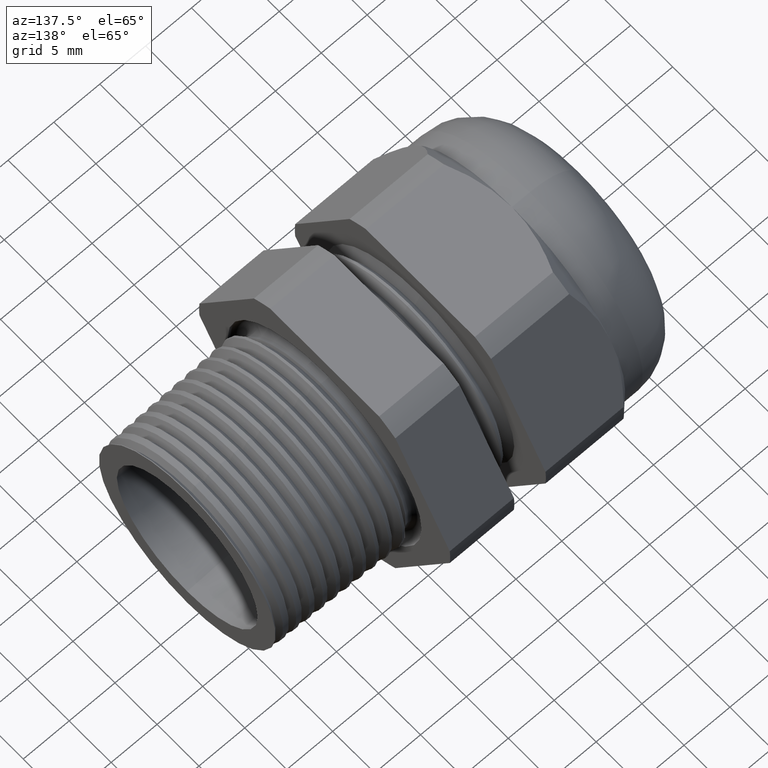
[diagram: clean part render]
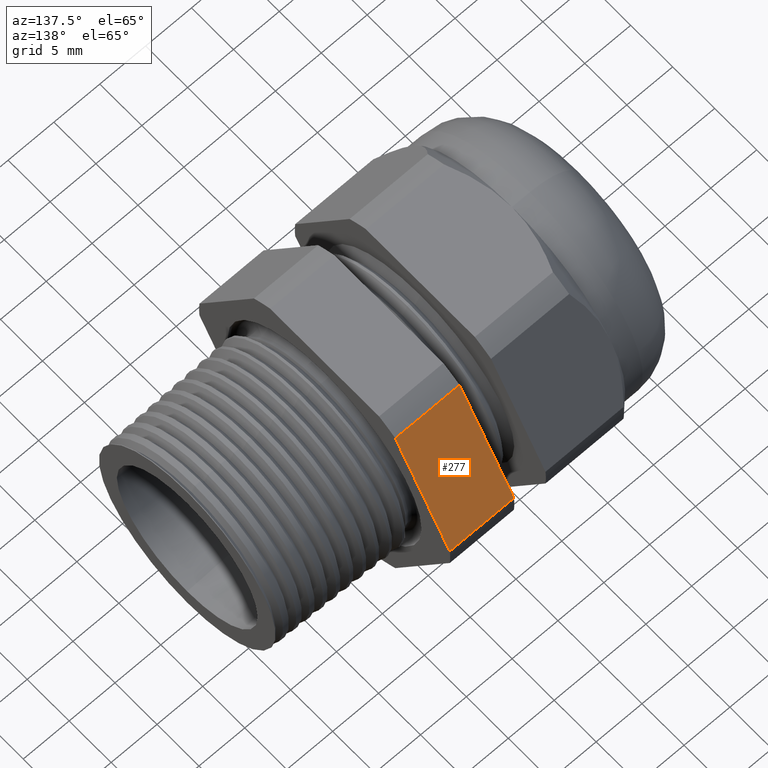
[diagram: same view with one face highlighted and labeled with its STEP entity id]
A machine part, auxiliary view. The second image highlights one B-rep face of the part: STEP entity #277.
In plain terms, the highlighted planar face has unit normal (0, 0.866, 0.5).
Its self-contained STEP definition (entity closure, byte-faithful):
#236 = EDGE_CURVE ( 'NONE', #237, #238, #818, .T. ) ;
#237 = VERTEX_POINT ( 'NONE', #878 ) ;
#238 = VERTEX_POINT ( 'NONE', #877 ) ;
#275 = EDGE_CURVE ( 'NONE', #1490, #238, #888, .T. ) ;
#277 = ADVANCED_FACE ( 'NONE', ( #884 ), #883, .T. ) ;
#278 = EDGE_LOOP ( 'NONE', ( #279, #332, #333, #335 ) ) ;
#279 = ORIENTED_EDGE ( 'NONE', *, *, #275, .T. ) ;
#332 = ORIENTED_EDGE ( 'NONE', *, *, #236, .F. ) ;
#333 = ORIENTED_EDGE ( 'NONE', *, *, #334, .F. ) ;
#334 = EDGE_CURVE ( 'NONE', #1483, #237, #1800, .T. ) ;
#335 = ORIENTED_EDGE ( 'NONE', *, *, #1482, .F. ) ;
#620 = DIRECTION ( 'NONE',  ( 0.0000000000000000000, -0.5000000000000001100, 0.8660254037844386000 ) ) ;
#815 = DIRECTION ( 'NONE',  ( 0.0000000000000000000, 0.5000000000000002200, -0.8660254037844386000 ) ) ;
#816 = VECTOR ( 'NONE', #815, 39.37007874015747400 ) ;
#817 = CARTESIAN_POINT ( 'NONE',  ( -0.5855905511811022600, 0.7239934640057524900, -0.1939934640057524600 ) ) ;
#818 = LINE ( 'NONE', #817, #816 ) ;
#877 = CARTESIAN_POINT ( 'NONE',  ( -0.5855905511811022600, 0.5866618723924791300, 0.04387183015273709400 ) ) ;
#878 = CARTESIAN_POINT ( 'NONE',  ( -0.5855905511811022600, 0.3313250556190259800, 0.4861281698472629800 ) ) ;
#879 = DIRECTION ( 'NONE',  ( 0.0000000000000000000, 0.8660254037844386000, 0.5000000000000001100 ) ) ;
#880 = CARTESIAN_POINT ( 'NONE',  ( 0.2800000000000000300, 0.3313250556190259800, 0.4861281698472629800 ) ) ;
#881 = AXIS2_PLACEMENT_3D ( 'NONE', #880, #879, #620 ) ;
#883 = PLANE ( 'NONE',  #881 ) ;
#884 = FACE_OUTER_BOUND ( 'NONE', #278, .T. ) ;
#885 = DIRECTION ( 'NONE',  ( -1.000000000000000000, 0.0000000000000000000, 0.0000000000000000000 ) ) ;
#886 = VECTOR ( 'NONE', #885, 39.37007874015748100 ) ;
#887 = CARTESIAN_POINT ( 'NONE',  ( 0.2800000000000000300, 0.5866618723924791300, 0.04387183015273709400 ) ) ;
#888 = LINE ( 'NONE', #887, #886 ) ;
#1482 = EDGE_CURVE ( 'NONE', #1490, #1483, #3194, .T. ) ;
#1483 = VERTEX_POINT ( 'NONE', #3190 ) ;
#1490 = VERTEX_POINT ( 'NONE', #3178 ) ;
#1797 = DIRECTION ( 'NONE',  ( -1.000000000000000000, 0.0000000000000000000, 0.0000000000000000000 ) ) ;
#1798 = VECTOR ( 'NONE', #1797, 39.37007874015748100 ) ;
#1799 = CARTESIAN_POINT ( 'NONE',  ( 0.2800000000000000300, 0.3313250556190259800, 0.4861281698472629800 ) ) ;
#1800 = LINE ( 'NONE', #1799, #1798 ) ;
#3178 = CARTESIAN_POINT ( 'NONE',  ( -0.3100000000000000000, 0.5866618723924791300, 0.04387183015273709400 ) ) ;
#3190 = CARTESIAN_POINT ( 'NONE',  ( -0.3100000000000000000, 0.3313250556190259800, 0.4861281698472629800 ) ) ;
#3191 = DIRECTION ( 'NONE',  ( 0.0000000000000000000, -0.5000000000000002200, 0.8660254037844386000 ) ) ;
#3192 = VECTOR ( 'NONE', #3191, 39.37007874015747400 ) ;
#3193 = CARTESIAN_POINT ( 'NONE',  ( -0.3100000000000000000, 0.7239934640057524900, -0.1939934640057525400 ) ) ;
#3194 = LINE ( 'NONE', #3193, #3192 ) ;